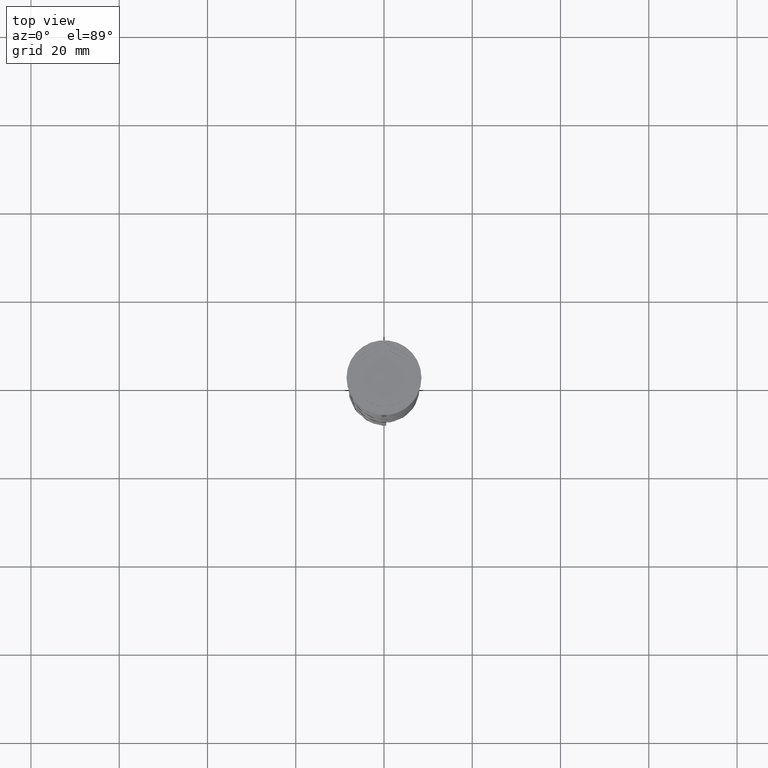
[diagram: clean part render]
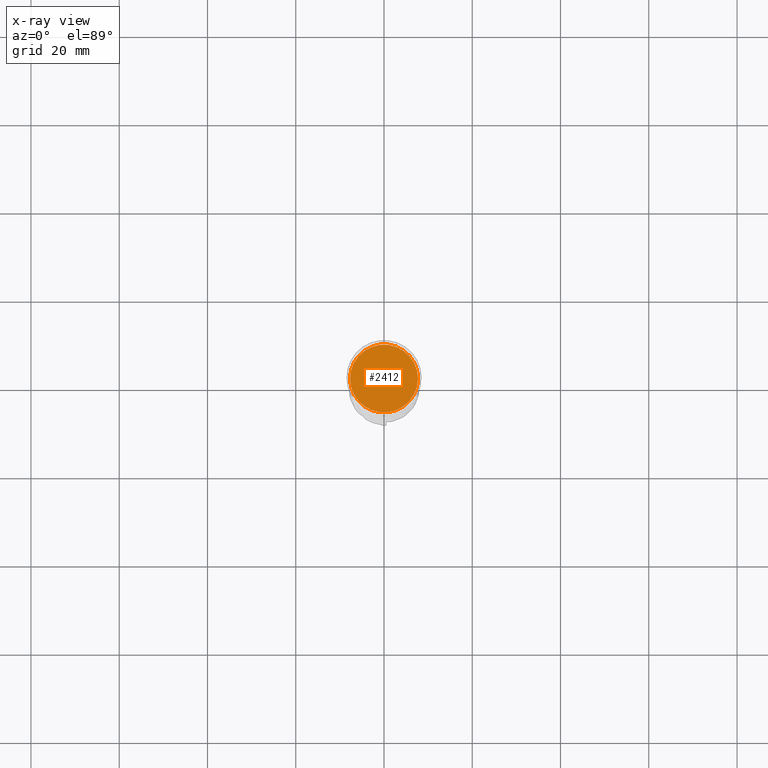
[diagram: x-ray — body ghosted, one internal face saturated and labeled with its STEP entity id]
A machine part, top view, then the same camera in x-ray: the body is ghosted and one INTERNAL B-rep face — a face not visible from any outside direction — is saturated and labeled: STEP entity #2412.
In plain terms, the highlighted planar face has unit normal (0, 0, -1).
Its self-contained STEP definition (entity closure, byte-faithful):
#61 = CARTESIAN_POINT ( 'NONE',  ( 0.000000000000000000, 0.000000000000000000, -12.00000000000000000 ) ) ;
#70 = CARTESIAN_POINT ( 'NONE',  ( 0.000000000000000000, 0.000000000000000000, -12.00000000000000000 ) ) ;
#159 = CIRCLE ( 'NONE', #3435, 7.700000000000001954 ) ;
#256 = EDGE_LOOP ( 'NONE', ( #783, #2135 ) ) ;
#287 = CARTESIAN_POINT ( 'NONE',  ( 7.700000000000001954, 9.613477373306725302E-16, -12.00000000000000000 ) ) ;
#639 = AXIS2_PLACEMENT_3D ( 'NONE', #61, #2123, #1201 ) ;
#783 = ORIENTED_EDGE ( 'NONE', *, *, #2477, .T. ) ;
#816 = AXIS2_PLACEMENT_3D ( 'NONE', #2910, #2875, #2020 ) ;
#1010 = VERTEX_POINT ( 'NONE', #3029 ) ;
#1172 = PLANE ( 'NONE',  #816 ) ;
#1201 = DIRECTION ( 'NONE',  ( -1.000000000000000000, 0.000000000000000000, 0.000000000000000000 ) ) ;
#1455 = FACE_OUTER_BOUND ( 'NONE', #256, .T. ) ;
#1560 = DIRECTION ( 'NONE',  ( -0.000000000000000000, -0.000000000000000000, 1.000000000000000000 ) ) ;
#1811 = DIRECTION ( 'NONE',  ( -1.000000000000000000, 0.000000000000000000, 0.000000000000000000 ) ) ;
#2020 = DIRECTION ( 'NONE',  ( -1.000000000000000000, 0.000000000000000000, -0.000000000000000000 ) ) ;
#2123 = DIRECTION ( 'NONE',  ( -0.000000000000000000, -0.000000000000000000, 1.000000000000000000 ) ) ;
#2135 = ORIENTED_EDGE ( 'NONE', *, *, #2996, .T. ) ;
#2412 = ADVANCED_FACE ( 'NONE', ( #1455 ), #1172, .F. ) ;
#2477 = EDGE_CURVE ( 'NONE', #1010, #3385, #159, .T. ) ;
#2875 = DIRECTION ( 'NONE',  ( 0.000000000000000000, 0.000000000000000000, -1.000000000000000000 ) ) ;
#2910 = CARTESIAN_POINT ( 'NONE',  ( 0.000000000000000000, 0.000000000000000000, -12.00000000000000000 ) ) ;
#2996 = EDGE_CURVE ( 'NONE', #3385, #1010, #3130, .T. ) ;
#3029 = CARTESIAN_POINT ( 'NONE',  ( -7.700000000000001954, 0.000000000000000000, -12.00000000000000000 ) ) ;
#3130 = CIRCLE ( 'NONE', #639, 7.700000000000001954 ) ;
#3385 = VERTEX_POINT ( 'NONE', #287 ) ;
#3435 = AXIS2_PLACEMENT_3D ( 'NONE', #70, #1560, #1811 ) ;